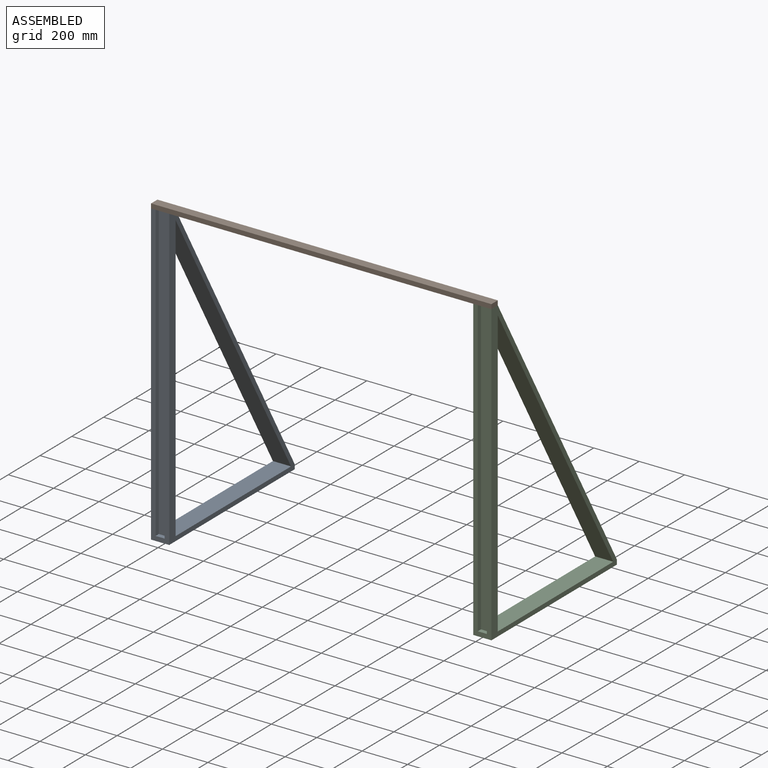
[diagram: assembled view]
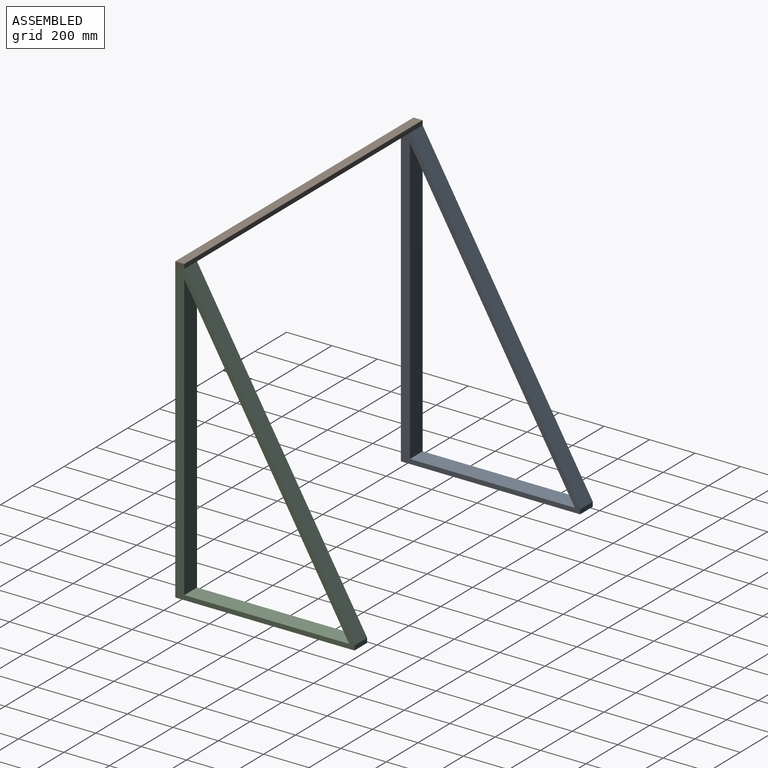
[diagram: assembled view, second angle]
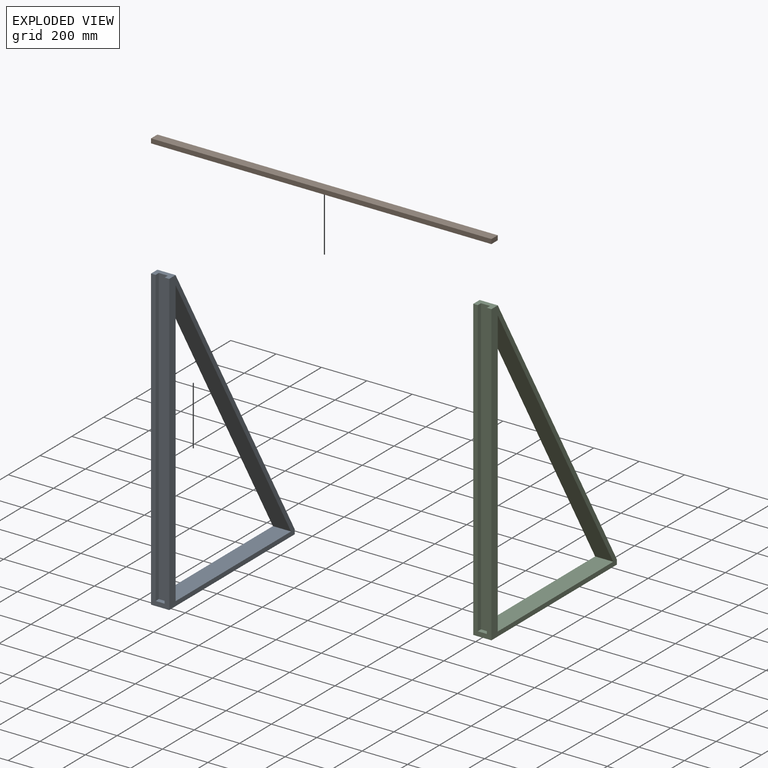
[diagram: exploded view]
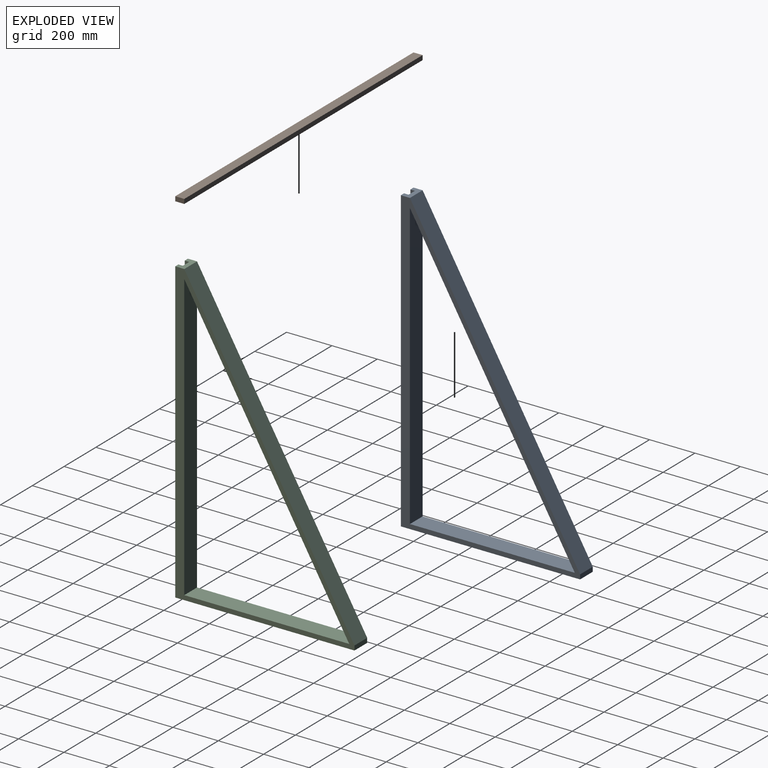
[diagram: exploded view, second angle]
ASSEMBLY  parts=3 mates=2
PART A: 14 faces, bbox 790x80x1319 mm
  f0: plane 1259.04x726.91mm, normal (-0.87,0,-0.5), area 116305mm2, adj f1,f7,f8,f9
  f1: plane 726.91x80mm, normal (0,0,1), area 58152.5mm2, adj f0,f7,f8,f9
  f2: plane 80x20mm, normal (1,0,0), area 1600mm2, adj f3,f6,f8,f9
  f3: plane 1299.04x750mm, normal (0.87,0,0.5), area 120000mm2, adj f2,f4,f8,f9
  f4: plane 80x40mm, normal (0,0,1), area 2400mm2, adj f3,f5,f8,f9,f10,f11,f12
  f5: plane 1319.04x80mm, normal (-1,0,0), area 53561.5mm2, adj f4,f6,f8,f9,f10,f12,f13
  f6: plane 790x80mm, normal (0,0,-1), area 63200mm2, adj f2,f5,f8,f9
  f7: plane 1259.04x80mm, normal (1,0,0), area 100723mm2, adj f0,f1,f8,f9
  f8: plane 1319.04x790mm, normal (0,-1,0), area 97299.6mm2, adj f0,f1,f2,f3,f4,f5,f6,f7
  f9: plane 1319.04x790mm, normal (0,1,0), area 97299.6mm2, adj f0,f1,f2,f3,f4,f5,f6,f7
  f10: plane 1299.04x20mm, normal (0,-1,0), area 25980.8mm2, adj f4,f5,f11,f13
  f11: plane 1299.04x40mm, normal (-1,0,0), area 51961.5mm2, adj f4,f10,f12,f13
  f12: plane 1299.04x20mm, normal (0,1,0), area 25980.8mm2, adj f4,f5,f11,f13
  f13: plane 40x20mm, normal (0,0,1), area 800mm2, adj f5,f10,f11,f12
PART B: 6 faces, bbox 40x1500x20 mm
  f0: plane 1500x20mm, normal (-1,0,0), area 30000mm2, adj f1,f3,f4,f5
  f1: plane 1500x40mm, normal (0,0,-1), area 60000mm2, adj f0,f2,f4,f5
  f2: plane 1500x20mm, normal (1,0,0), area 30000mm2, adj f1,f3,f4,f5
  f3: plane 1500x40mm, normal (0,0,1), area 60000mm2, adj f0,f2,f4,f5
  f4: plane 40x20mm, normal (0,-1,0), area 800mm2, adj f0,f1,f2,f3
  f5: plane 40x20mm, normal (0,1,0), area 800mm2, adj f0,f1,f2,f3
PART C: same geometry as A
PLACE A rot(axis=(0,0,1),90deg) t=(-701.03,-528.94,-209.98)mm
PLACE B rot(axis=(0,0,1),90deg) t=(-701.03,-245.66,1403.33)mm
PLACE C rot(axis=(0,0,1),90deg) t=(718.97,-528.94,-209.98)mm
MATE fastened B.f1 <-> C.f4  axis (0,0,-1) through (758.97,-250.49,1391.81)mm
MATE fastened A.f4 <-> B.f1  axis (0,0,1) through (-661.03,-250.49,1391.81)mm
